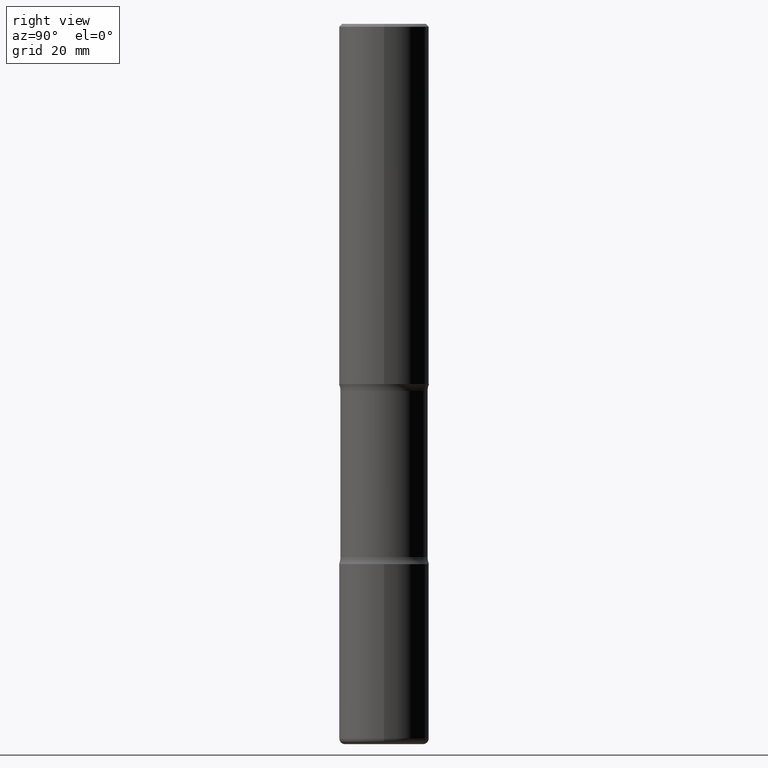
[diagram: clean part render]
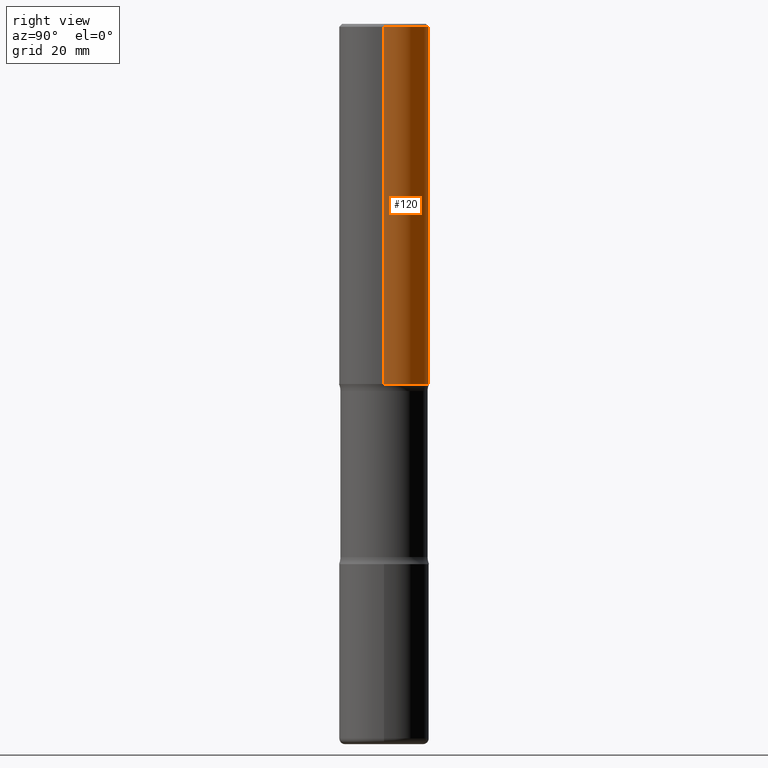
[diagram: same view with one face highlighted and labeled with its STEP entity id]
A machine part, right view. The second image highlights one B-rep face of the part: STEP entity #120.
In plain terms, the highlighted cylindrical surface (partial cylindrical patch) has radius 7.9375 mm, axis along (-0, 0, 1).
Its self-contained STEP definition (entity closure, byte-faithful):
#5 = CARTESIAN_POINT ( 'NONE',  ( -0.3125000000000002776, -2.178820437692046306E-15, -2.500000000000000444 ) ) ;
#83 = CARTESIAN_POINT ( 'NONE',  ( 4.890937612370306439E-31, -6.982962677686338448E-17, -0.02000000000000013572 ) ) ;
#92 = LINE ( 'NONE', #311, #217 ) ;
#101 = DIRECTION ( 'NONE',  ( -2.445468806185136877E-29, 3.491481338843145188E-15, 1.000000000000000000 ) ) ;
#110 = VERTEX_POINT ( 'NONE', #5 ) ;
#112 = LINE ( 'NONE', #499, #456 ) ;
#120 = ADVANCED_FACE ( 'NONE', ( #262 ), #225, .T. ) ;
#141 = CARTESIAN_POINT ( 'NONE',  ( 0.000000000000000000, 0.000000000000000000, 0.000000000000000000 ) ) ;
#145 = EDGE_CURVE ( 'NONE', #110, #414, #92, .T. ) ;
#151 = EDGE_LOOP ( 'NONE', ( #212, #503, #241, #233 ) ) ;
#158 = DIRECTION ( 'NONE',  ( 1.000000000000000000, -6.982962677686266711E-15, 0.000000000000000000 ) ) ;
#172 = AXIS2_PLACEMENT_3D ( 'NONE', #83, #386, #158 ) ;
#173 = DIRECTION ( 'NONE',  ( -2.445468806185136597E-29, 3.491481338843145583E-15, 1.000000000000000000 ) ) ;
#178 = CIRCLE ( 'NONE', #467, 0.3125000000000002776 ) ;
#179 = EDGE_CURVE ( 'NONE', #325, #110, #178, .T. ) ;
#186 = CARTESIAN_POINT ( 'NONE',  ( 6.113672015462842613E-29, -8.728703347107866520E-15, -2.500000000000000444 ) ) ;
#189 = DIRECTION ( 'NONE',  ( -2.445468806185136877E-29, 3.491481338843145188E-15, 1.000000000000000000 ) ) ;
#190 = AXIS2_PLACEMENT_3D ( 'NONE', #141, #173, #399 ) ;
#212 = ORIENTED_EDGE ( 'NONE', *, *, #179, .T. ) ;
#217 = VECTOR ( 'NONE', #101, 39.37007874015748143 ) ;
#219 = DIRECTION ( 'NONE',  ( -2.445468806185136597E-29, 3.491481338843145583E-15, 1.000000000000000000 ) ) ;
#225 = CYLINDRICAL_SURFACE ( 'NONE', #190, 0.3125000000000000000 ) ;
#233 = ORIENTED_EDGE ( 'NONE', *, *, #326, .F. ) ;
#235 = CIRCLE ( 'NONE', #172, 0.3124999999999998335 ) ;
#241 = ORIENTED_EDGE ( 'NONE', *, *, #437, .F. ) ;
#262 = FACE_OUTER_BOUND ( 'NONE', #151, .T. ) ;
#264 = DIRECTION ( 'NONE',  ( 1.000000000000000000, -6.982962677686265922E-15, 0.000000000000000000 ) ) ;
#282 = VERTEX_POINT ( 'NONE', #447 ) ;
#311 = CARTESIAN_POINT ( 'NONE',  ( -0.3125000000000000000, 2.220446049250313081E-15, -1.537167215704658232E-29 ) ) ;
#318 = CARTESIAN_POINT ( 'NONE',  ( 0.3125000000000002776, -1.091087918388482645E-14, -2.500000000000000444 ) ) ;
#325 = VERTEX_POINT ( 'NONE', #318 ) ;
#326 = EDGE_CURVE ( 'NONE', #325, #282, #112, .T. ) ;
#334 = CARTESIAN_POINT ( 'NONE',  ( -0.3124999999999998335, 2.112346210000093471E-15, -0.02000000000000013572 ) ) ;
#386 = DIRECTION ( 'NONE',  ( -2.445468806185136597E-29, 3.491481338843145583E-15, 1.000000000000000000 ) ) ;
#399 = DIRECTION ( 'NONE',  ( 1.000000000000000000, -6.982962677686266711E-15, 4.876176775795936353E-29 ) ) ;
#414 = VERTEX_POINT ( 'NONE', #334 ) ;
#437 = EDGE_CURVE ( 'NONE', #282, #414, #235, .T. ) ;
#447 = CARTESIAN_POINT ( 'NONE',  ( 0.3124999999999998335, -2.213735251080466123E-15, -0.02000000000000013572 ) ) ;
#456 = VECTOR ( 'NONE', #189, 39.37007874015748143 ) ;
#467 = AXIS2_PLACEMENT_3D ( 'NONE', #186, #219, #264 ) ;
#499 = CARTESIAN_POINT ( 'NONE',  ( 0.3125000000000000000, -2.182175836776958347E-15, 1.523805242436230075E-29 ) ) ;
#503 = ORIENTED_EDGE ( 'NONE', *, *, #145, .T. ) ;